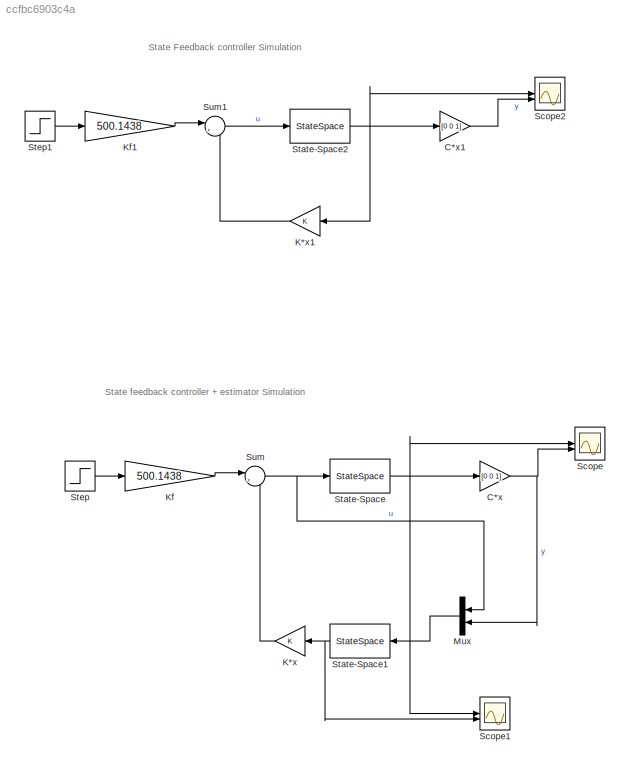
MODEL slx_ccfbc6903c4a
KIND model
CONFIG AbsTol = auto
CONFIG EnableMultiTasking = off
CONFIG FixedStep = auto
CONFIG MaxStep = auto
CONFIG MinStep = auto
CONFIG RelTol = 1e-3
CONFIG SampleTimeConstraint = Unconstrained
CONFIG SolverName = VariableStepAuto
CONFIG StartTime = 0.0
CONFIG StopTime = 100
BLOCK [Gain] C*x
  Gain = [0 0 1]
  Multiplication = Matrix(K*u)
BLOCK [Gain] C*x1
  Gain = [0 0 1]
  Multiplication = Matrix(K*u)
BLOCK [Gain] K*x
  Gain = K
  Multiplication = Matrix(K*u)
  NameLocation = top
BLOCK [Gain] K*x1
  Gain = K
  Multiplication = Matrix(K*u)
  NameLocation = top
BLOCK [Gain] Kf
  Gain = 500.1438
BLOCK [Gain] Kf1
  Gain = 500.1438
BLOCK [Mux] Mux
  DisplayOption = bar
  Inputs = 2
  NameLocation = top
BLOCK [Scope] Scope
  Floating = off
  NumInputPorts = 2
  ScopeSpecificationString = Simulink.scopes.TimeScopeBlockCfg('CurrentConfiguration', extmgr.ConfigurationSet(extmgr.Configuration('Core','General UI',true),extmgr.Configuration('Core','Source UI',true),extmgr.Configuration('Sources','WiredSimulink',true),extmgr.Configuration('Visuals','Time Domain',true,'SerializedDisplays',{struct('MinYLimReal','-1.48531','MaxYLimReal','4.7061','YLabelReal','','MinYLimMag','0.00000','MaxYL...<+1534ch>
BLOCK [Scope] Scope1
  Floating = off
  NumInputPorts = 2
  ScopeSpecificationString = Simulink.scopes.TimeScopeBlockCfg('CurrentConfiguration', extmgr.ConfigurationSet(extmgr.Configuration('Core','General UI',true,'FigureColor',[1 1 1]),extmgr.Configuration('Core','Source UI',true),extmgr.Configuration('Sources','WiredSimulink',true,'DataLoggingVariableName','ScopeData1'),extmgr.Configuration('Visuals','Time Domain',true,'SerializedDisplays',{struct('MinYLimReal','-2.48178','MaxYLi...<+2453ch>
BLOCK [Scope] Scope2
  Floating = off
  NumInputPorts = 2
  ScopeSpecificationString = Simulink.scopes.TimeScopeBlockCfg('CurrentConfiguration', extmgr.ConfigurationSet(extmgr.Configuration('Core','General UI',true,'FigureColor',[1 1 1]),extmgr.Configuration('Core','Source UI',true),extmgr.Configuration('Sources','WiredSimulink',true,'DataLoggingVariableName','ScopeData2'),extmgr.Configuration('Visuals','Time Domain',true,'SerializedDisplays',{struct('MinYLimReal','-2.43295','MaxYLi...<+2136ch>
BLOCK [StateSpace] State-Space
  A = [-0.313 56.7 0;-0.0139 -0.426 -5;0 56.7 0]
  B = [0.232; 0.0203; 0]
  C = eye(3)
  D = zeros(3,1)
  InitialCondition = 0
BLOCK [StateSpace] State-Space1
  A = [-0.313 56.7 0;-0.0139 -0.426 -5;0 56.7 0]-L*[0 0 1]
  B = [0.232 L(1); 0.0203 L(2); 0 L(3)]
  C = eye(3)
  D = zeros(3,2)
  InitialCondition = 0
  NameLocation = top
BLOCK [StateSpace] State-Space2
  A = [-0.313 56.7 0;-0.0139 -0.426 -5;0 56.7 0]
  B = [0.232; 0.0203; 0]
  C = eye(3)
  D = zeros(3,1)
  InitialCondition = 0
BLOCK [Step] Step
  After = 2
  Before = 1
  SampleTime = 0
  Time = 50
BLOCK [Step] Step1
  After = 2
  Before = 1
  SampleTime = 0
  Time = 50
BLOCK [Sum] Sum
  Inputs = |+-
BLOCK [Sum] Sum1
  Inputs = |+-
ANNOTATION (root): State Feedback controller Simulation
ANNOTATION (root): State feedback controller + estimator Simulation
LINE C*x1:1 -> Scope2:2
NET C*x:1 -> Mux:2, Scope:2
LINE K*x1:1 -> Sum1:2
LINE K*x:1 -> Sum:2
LINE Kf1:1 -> Sum1:1
LINE Kf:1 -> Sum:1
LINE Mux:1 -> State-Space1:1
NET State-Space1:1 -> K*x:1, Scope1:2
NET State-Space2:1 -> C*x1:1, K*x1:1, Scope2:1
NET State-Space:1 -> C*x:1, Scope1:1, Scope:1
LINE Step1:1 -> Kf1:1
LINE Step:1 -> Kf:1
LINE Sum1:1 -> State-Space2:1
NET Sum:1 -> Mux:1, State-Space:1
note: NET lines group one-source signal fan-out (src -> all destinations, sorted); 1:1 wires keep LINE
